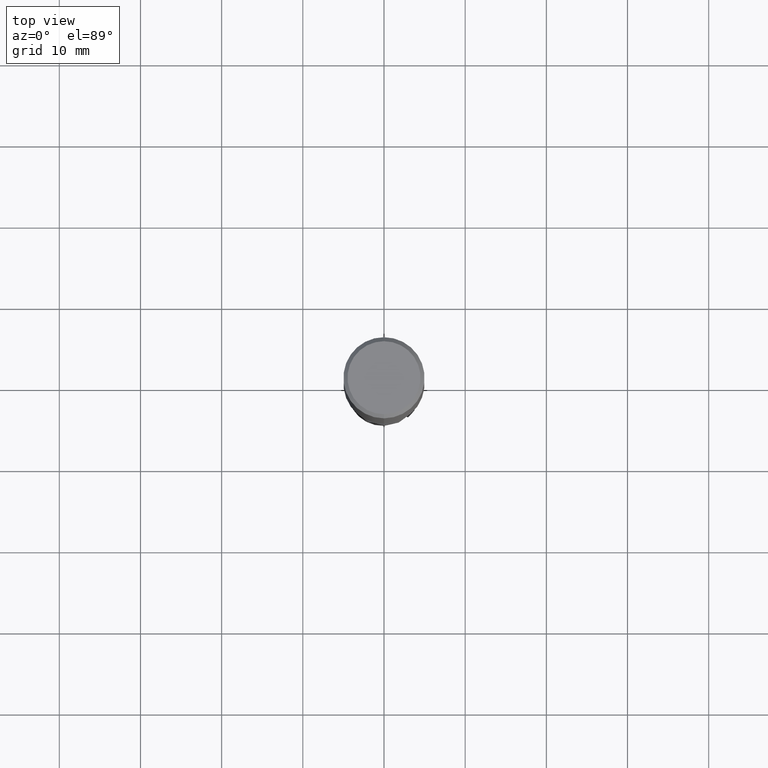
[diagram: clean part render]
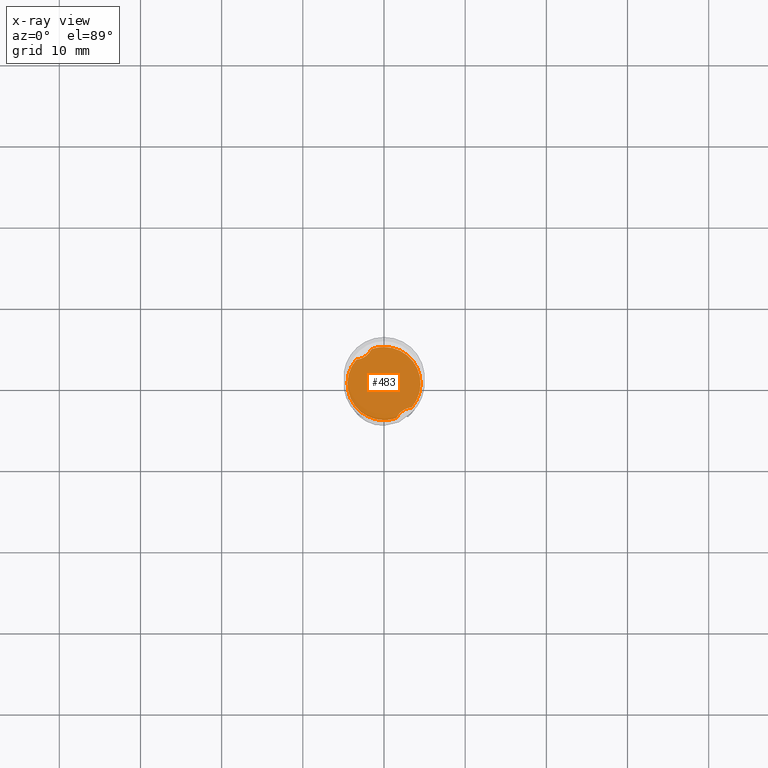
[diagram: x-ray — body ghosted, one internal face saturated and labeled with its STEP entity id]
A machine part, top view, then the same camera in x-ray: the body is ghosted and one INTERNAL B-rep face — a face not visible from any outside direction — is saturated and labeled: STEP entity #483.
In plain terms, the highlighted planar face has unit normal (-0, 0, 1).
Its self-contained STEP definition (entity closure, byte-faithful):
#335=EDGE_CURVE('',#515,#393,#835,.T.);
#361=EDGE_CURVE('',#625,#515,#862,.T.);
#393=VERTEX_POINT('',#896);
#401=EDGE_CURVE('',#439,#489,#904,.T.);
#439=VERTEX_POINT('',#945);
#483=ADVANCED_FACE('',(#994),#995,.T.);
#489=VERTEX_POINT('',#1001);
#515=VERTEX_POINT('',#1029);
#539=VERTEX_POINT('',#1055);
#591=EDGE_CURVE('',#625,#489,#1115,.T.);
#615=EDGE_CURVE('',#539,#439,#1142,.T.);
#621=EDGE_CURVE('',#539,#393,#1149,.T.);
#625=VERTEX_POINT('',#1153);
#835=CIRCLE('',#1703,4.4999);
#862=CIRCLE('',#1822,4.4999);
#896=CARTESIAN_POINT('',(3.40940975058335,-2.9368393150847,-42.0));
#904=CIRCLE('',#1935,4.4999);
#945=CARTESIAN_POINT('',(5.50485621863163E-016,-4.4999,-42.0));
#994=FACE_OUTER_BOUND('',#4171,.T.);
#995=PLANE('',#4172);
#1001=CARTESIAN_POINT('',(-3.40940975058334,2.93683931508471,-42.0));
#1029=CARTESIAN_POINT('',(-5.51352983418506E-016,4.4999,-42.0));
#1055=CARTESIAN_POINT('',(1.53353171754747,-4.2305295745658,-42.0));
#1115=B_SPLINE_CURVE_WITH_KNOTS('',3,(#4624,#4625,#4626,#4627,#4628,#4629,#4630,#4631,#4632,#4633,#4634,#4635),.UNSPECIFIED.,.F.,.F.,(4,2,2,2,2,4),(0.0,0.97784663252122,1.87141651150706,2.77224721229674,3.32970583749322,3.91102022322048),.UNSPECIFIED.);
#1142=CIRCLE('',#4779,4.4999);
#1149=B_SPLINE_CURVE_WITH_KNOTS('',3,(#4787,#4788,#4789,#4790,#4791,#4792,#4793,#4794,#4795,#4796,#4797,#4798),.UNSPECIFIED.,.F.,.F.,(4,2,2,2,2,4),(0.0,0.977846632521367,1.87141651150726,2.77224721229697,3.32970583749347,3.91102022322056),.UNSPECIFIED.);
#1153=CARTESIAN_POINT('',(-1.53353171754748,4.2305295745658,-42.0));
#1703=AXIS2_PLACEMENT_3D('',#5321,#5322,#5323);
#1822=AXIS2_PLACEMENT_3D('',#5357,#5358,#5359);
#1935=AXIS2_PLACEMENT_3D('',#5386,#5387,#5388);
#4171=EDGE_LOOP('',(#5479,#5480,#5481,#5482,#5483,#5484));
#4172=AXIS2_PLACEMENT_3D('',#5485,#5486,#5487);
#4624=CARTESIAN_POINT('',(-1.40388645545959,4.5499,-42.0));
#4625=CARTESIAN_POINT('',(-1.50648636451431,4.24052008887116,-42.0));
#4626=CARTESIAN_POINT('',(-1.6634559576835,3.95432896581672,-41.9999999999873));
#4627=CARTESIAN_POINT('',(-2.07165355860237,3.48442152606063,-41.9999999999873));
#4628=CARTESIAN_POINT('',(-2.30657496259809,3.30232448711177,-42.0000000000007));
#4629=CARTESIAN_POINT('',(-2.84099003997403,3.03718116613979,-42.0000000000007));
#4630=CARTESIAN_POINT('',(-3.13142256823897,2.95963742355158,-42.0000000000001));
#4631=CARTESIAN_POINT('',(-3.61517709643594,2.9198124129506,-42.0000000000001));
#4632=CARTESIAN_POINT('',(-3.80114581670011,2.92503051815447,-42.0));
#4633=CARTESIAN_POINT('',(-4.17726154410381,2.97325950269598,-42.0));
#4634=CARTESIAN_POINT('',(-4.36630499451343,3.01774553892565,-42.0));
#4635=CARTESIAN_POINT('',(-4.5499,3.07935233015998,-42.0));
#4779=AXIS2_PLACEMENT_3D('',#5674,#5675,#5676);
#4787=CARTESIAN_POINT('',(1.40388645545959,-4.5499,-42.0));
#4788=CARTESIAN_POINT('',(1.50648636451432,-4.24052008887112,-42.0));
#4789=CARTESIAN_POINT('',(1.66345595768351,-3.95432896581671,-41.9999999999873));
#4790=CARTESIAN_POINT('',(2.07165355860234,-3.48442152606066,-41.9999999999873));
#4791=CARTESIAN_POINT('',(2.30657496259807,-3.30232448711177,-42.0000000000007));
#4792=CARTESIAN_POINT('',(2.84099003997404,-3.03718116613978,-42.0000000000007));
#4793=CARTESIAN_POINT('',(3.13142256823901,-2.95963742355158,-42.0000000000001));
#4794=CARTESIAN_POINT('',(3.61517709643592,-2.9198124129506,-42.0000000000001));
#4795=CARTESIAN_POINT('',(3.80114581670006,-2.92503051815446,-42.0));
#4796=CARTESIAN_POINT('',(4.17726154410381,-2.97325950269597,-42.0));
#4797=CARTESIAN_POINT('',(4.36630499451342,-3.01774553892564,-42.0));
#4798=CARTESIAN_POINT('',(4.5499,-3.07935233015998,-42.0));
#5321=CARTESIAN_POINT('',(0.0,0.0,-42.0));
#5322=DIRECTION('',(0.0,0.0,-1.0));
#5323=DIRECTION('',(0.0,1.0,0.0));
#5357=CARTESIAN_POINT('',(0.0,0.0,-42.0));
#5358=DIRECTION('',(0.0,0.0,-1.0));
#5359=DIRECTION('',(0.0,1.0,0.0));
#5386=CARTESIAN_POINT('',(0.0,0.0,-42.0));
#5387=DIRECTION('',(0.0,0.0,-1.0));
#5388=DIRECTION('',(0.0,1.0,0.0));
#5479=ORIENTED_EDGE('',*,*,#621,.T.);
#5480=ORIENTED_EDGE('',*,*,#335,.F.);
#5481=ORIENTED_EDGE('',*,*,#361,.F.);
#5482=ORIENTED_EDGE('',*,*,#591,.T.);
#5483=ORIENTED_EDGE('',*,*,#401,.F.);
#5484=ORIENTED_EDGE('',*,*,#615,.F.);
#5485=CARTESIAN_POINT('',(0.0,2.24995,-42.0));
#5486=DIRECTION('',(-0.0,0.0,1.0));
#5487=DIRECTION('',(0.0,-1.0,0.0));
#5674=CARTESIAN_POINT('',(0.0,0.0,-42.0));
#5675=DIRECTION('',(0.0,0.0,-1.0));
#5676=DIRECTION('',(0.0,1.0,0.0));